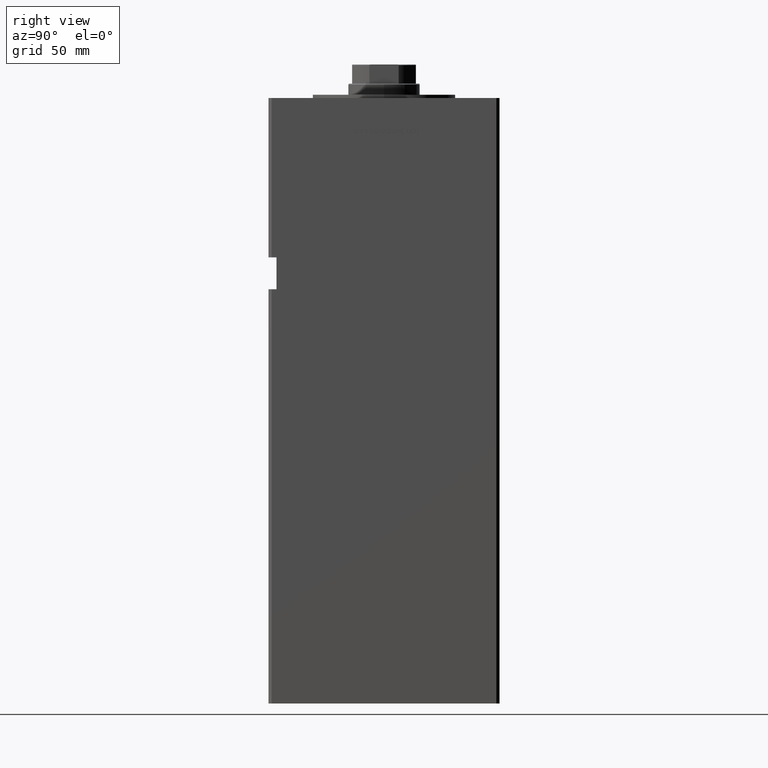
[diagram: clean part render]
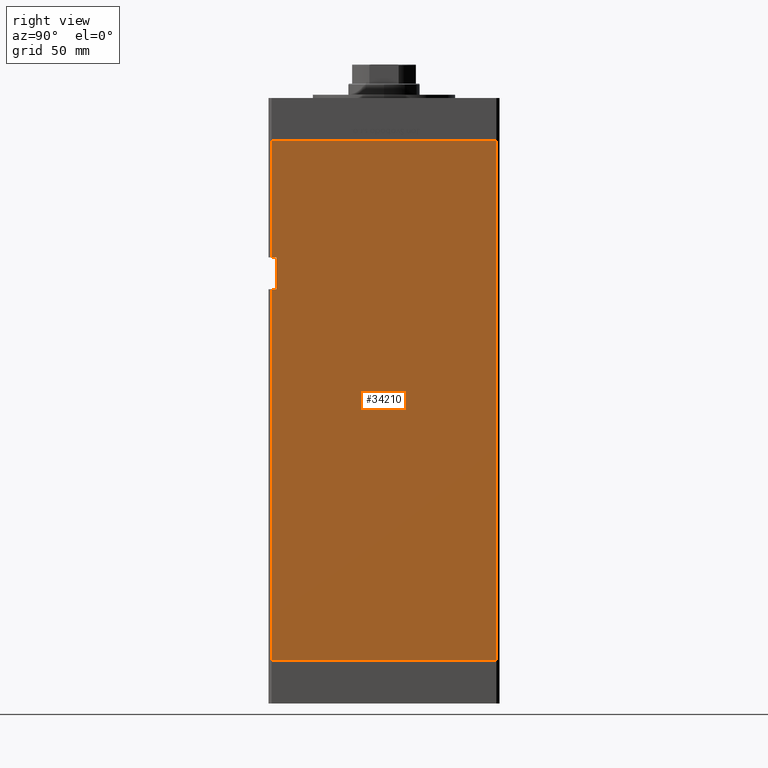
[diagram: same view with one face highlighted and labeled with its STEP entity id]
A machine part, right view. The second image highlights one B-rep face of the part: STEP entity #34210.
In plain terms, the highlighted planar face has unit normal (1, -0, 0).
Its self-contained STEP definition (entity closure, byte-faithful):
#355 = DIRECTION ( 'NONE',  ( -0.000000000000000000, -0.000000000000000000, -1.000000000000000000 ) ) ;
#586 = CARTESIAN_POINT ( 'NONE',  ( 84.99999999999998579, -67.50000000000000000, 253.0000000000000000 ) ) ;
#1149 = VERTEX_POINT ( 'NONE', #5224 ) ;
#2294 = VECTOR ( 'NONE', #52412, 1000.000000000000000 ) ;
#3024 = PLANE ( 'NONE',  #47933 ) ;
#3090 = DIRECTION ( 'NONE',  ( -0.000000000000000000, -0.000000000000000000, -1.000000000000000000 ) ) ;
#4045 = VERTEX_POINT ( 'NONE', #26725 ) ;
#4816 = CARTESIAN_POINT ( 'NONE',  ( 84.99999999999998579, -67.50000000000000000, 253.0000000000000000 ) ) ;
#5224 = CARTESIAN_POINT ( 'NONE',  ( 85.00000000000001421, 70.50000000000000000, 0.000000000000000000 ) ) ;
#5351 = VERTEX_POINT ( 'NONE', #39509 ) ;
#6253 = CARTESIAN_POINT ( 'NONE',  ( 84.99999999999998579, -67.50000000000000000, 253.0000000000000000 ) ) ;
#6849 = CARTESIAN_POINT ( 'NONE',  ( 84.99999999999998579, -70.50000000000000000, 326.0000000000000000 ) ) ;
#7822 = CARTESIAN_POINT ( 'NONE',  ( 85.00000000000001421, 70.50000000000000000, 326.0000000000000000 ) ) ;
#9613 = DIRECTION ( 'NONE',  ( -1.968480540115525664E-16, -1.000000000000000000, 0.000000000000000000 ) ) ;
#10188 = ORIENTED_EDGE ( 'NONE', *, *, #50462, .F. ) ;
#10280 = VERTEX_POINT ( 'NONE', #46430 ) ;
#10877 = EDGE_CURVE ( 'NONE', #36461, #11532, #41164, .T. ) ;
#11237 = LINE ( 'NONE', #27903, #31025 ) ;
#11532 = VERTEX_POINT ( 'NONE', #36515 ) ;
#14283 = EDGE_CURVE ( 'NONE', #42332, #5351, #17733, .T. ) ;
#14785 = EDGE_CURVE ( 'NONE', #4045, #36461, #24354, .T. ) ;
#15274 = DIRECTION ( 'NONE',  ( -1.968480540115525664E-16, -1.000000000000000000, 0.000000000000000000 ) ) ;
#15352 = EDGE_CURVE ( 'NONE', #1149, #11532, #17681, .T. ) ;
#16085 = ORIENTED_EDGE ( 'NONE', *, *, #21377, .F. ) ;
#17681 = LINE ( 'NONE', #34058, #32221 ) ;
#17733 = LINE ( 'NONE', #586, #21873 ) ;
#19384 = FACE_OUTER_BOUND ( 'NONE', #25364, .T. ) ;
#19901 = DIRECTION ( 'NONE',  ( 1.968480540115525910E-16, 1.000000000000000000, 0.000000000000000000 ) ) ;
#21377 = EDGE_CURVE ( 'NONE', #4045, #42332, #31736, .T. ) ;
#21873 = VECTOR ( 'NONE', #37100, 1000.000000000000000 ) ;
#24212 = DIRECTION ( 'NONE',  ( 1.000000000000000000, -1.968480540115525910E-16, 0.000000000000000000 ) ) ;
#24354 = LINE ( 'NONE', #33190, #50241 ) ;
#25067 = VECTOR ( 'NONE', #35898, 1000.000000000000000 ) ;
#25204 = VECTOR ( 'NONE', #355, 1000.000000000000000 ) ;
#25364 = EDGE_LOOP ( 'NONE', ( #33509, #50608, #52174, #10188, #49663, #33833, #31003, #16085 ) ) ;
#25761 = CARTESIAN_POINT ( 'NONE',  ( 84.99999999999998579, -70.50000000000000000, 232.9999999999999716 ) ) ;
#26725 = CARTESIAN_POINT ( 'NONE',  ( 84.99999999999998579, -67.50000000000000000, 232.9999999999999716 ) ) ;
#27521 = LINE ( 'NONE', #6849, #43766 ) ;
#27574 = CARTESIAN_POINT ( 'NONE',  ( 85.00000000000001421, 70.50000000000000000, 326.0000000000000000 ) ) ;
#27903 = CARTESIAN_POINT ( 'NONE',  ( 85.00000000000001421, 70.50000000000000000, 326.0000000000000000 ) ) ;
#30813 = LINE ( 'NONE', #27574, #25067 ) ;
#31003 = ORIENTED_EDGE ( 'NONE', *, *, #14283, .F. ) ;
#31025 = VECTOR ( 'NONE', #15274, 1000.000000000000000 ) ;
#31736 = LINE ( 'NONE', #6253, #2294 ) ;
#32221 = VECTOR ( 'NONE', #9613, 1000.000000000000000 ) ;
#33190 = CARTESIAN_POINT ( 'NONE',  ( 84.99999999999998579, -67.50000000000000000, 232.9999999999999716 ) ) ;
#33509 = ORIENTED_EDGE ( 'NONE', *, *, #14785, .T. ) ;
#33833 = ORIENTED_EDGE ( 'NONE', *, *, #39409, .T. ) ;
#34058 = CARTESIAN_POINT ( 'NONE',  ( 85.00000000000001421, 70.50000000000000000, 0.000000000000000000 ) ) ;
#34210 = ADVANCED_FACE ( 'NONE', ( #19384 ), #3024, .T. ) ;
#35898 = DIRECTION ( 'NONE',  ( -0.000000000000000000, -0.000000000000000000, -1.000000000000000000 ) ) ;
#36461 = VERTEX_POINT ( 'NONE', #25761 ) ;
#36515 = CARTESIAN_POINT ( 'NONE',  ( 84.99999999999998579, -70.50000000000000000, 0.000000000000000000 ) ) ;
#37100 = DIRECTION ( 'NONE',  ( -0.000000000000000000, -1.000000000000000000, -0.000000000000000000 ) ) ;
#37120 = VERTEX_POINT ( 'NONE', #41379 ) ;
#39409 = EDGE_CURVE ( 'NONE', #37120, #5351, #27521, .T. ) ;
#39509 = CARTESIAN_POINT ( 'NONE',  ( 84.99999999999998579, -70.50000000000000000, 253.0000000000000000 ) ) ;
#41164 = LINE ( 'NONE', #52710, #25204 ) ;
#41379 = CARTESIAN_POINT ( 'NONE',  ( 84.99999999999998579, -70.50000000000000000, 326.0000000000000000 ) ) ;
#42332 = VERTEX_POINT ( 'NONE', #4816 ) ;
#43602 = EDGE_CURVE ( 'NONE', #10280, #37120, #11237, .T. ) ;
#43766 = VECTOR ( 'NONE', #3090, 1000.000000000000000 ) ;
#46430 = CARTESIAN_POINT ( 'NONE',  ( 85.00000000000001421, 70.50000000000000000, 326.0000000000000000 ) ) ;
#47933 = AXIS2_PLACEMENT_3D ( 'NONE', #7822, #24212, #19901 ) ;
#49319 = DIRECTION ( 'NONE',  ( -0.000000000000000000, -1.000000000000000000, -0.000000000000000000 ) ) ;
#49663 = ORIENTED_EDGE ( 'NONE', *, *, #43602, .T. ) ;
#50241 = VECTOR ( 'NONE', #49319, 1000.000000000000000 ) ;
#50462 = EDGE_CURVE ( 'NONE', #10280, #1149, #30813, .T. ) ;
#50608 = ORIENTED_EDGE ( 'NONE', *, *, #10877, .T. ) ;
#52174 = ORIENTED_EDGE ( 'NONE', *, *, #15352, .F. ) ;
#52412 = DIRECTION ( 'NONE',  ( -0.000000000000000000, -0.000000000000000000, 1.000000000000000000 ) ) ;
#52710 = CARTESIAN_POINT ( 'NONE',  ( 84.99999999999998579, -70.50000000000000000, 326.0000000000000000 ) ) ;